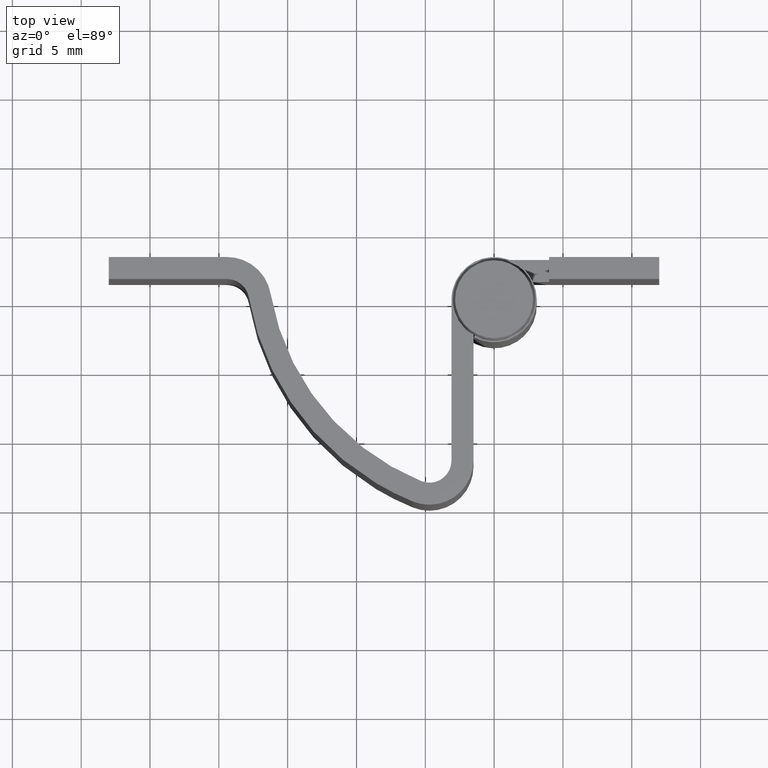
[diagram: clean part render]
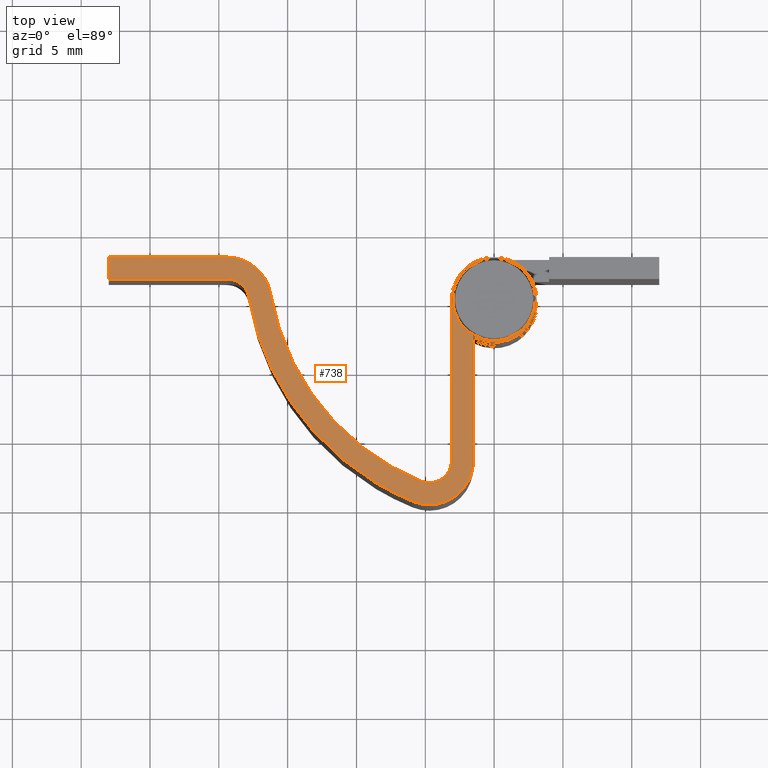
[diagram: same view with one face highlighted and labeled with its STEP entity id]
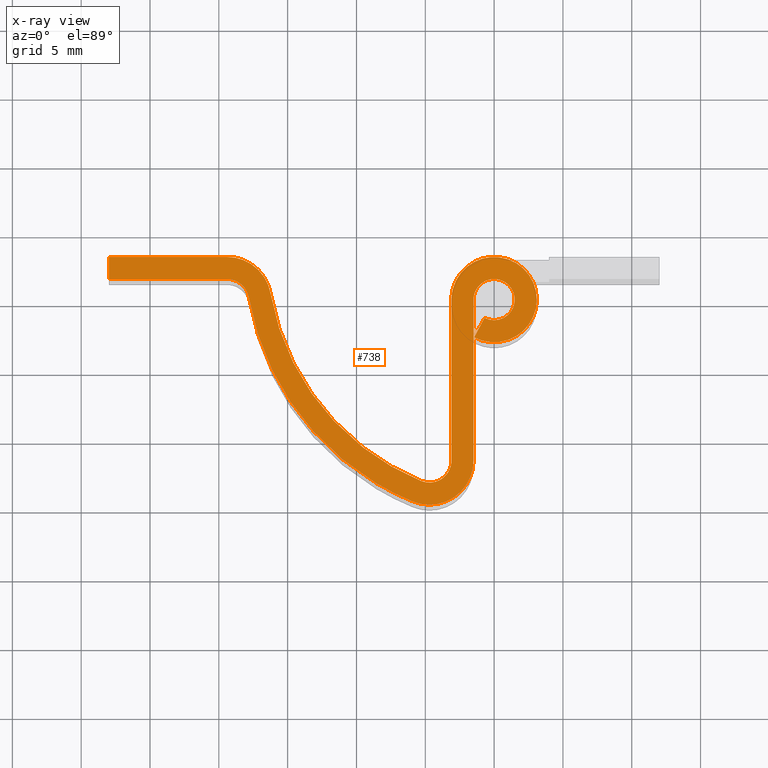
[diagram: x-ray of the same camera — body ghosted, the highlighted face saturated]
A machine part, top view. The second image highlights one B-rep face of the part: STEP entity #738.
The next image is the same camera in x-ray: the body ghosted, the highlighted face saturated — about 0% of this face is hidden behind the body in this view.
In plain terms, the highlighted face is a freeform B-spline surface patch.
Its self-contained STEP definition (entity closure, byte-faithful):
#553=CARTESIAN_POINT('',(4.652647075965634,3.999100123063185,28.000008000000001));
#554=CARTESIAN_POINT('',(-29.553407816543999,3.999100123063185,28.000008000000001));
#555=CARTESIAN_POINT('',(4.652647075965634,-15.799078204281271,28.000008000000001));
#556=CARTESIAN_POINT('',(-29.553407816543999,-15.799078204281271,28.000008000000001));
#557=B_SPLINE_SURFACE_WITH_KNOTS('',1,1,((#553,#555),(#554,#556)),.UNSPECIFIED.,.F.,.F.,.U.,(2,2),(2,2),(0.0,34.206054892509627),(0.0,19.798178327344459),.UNSPECIFIED.);
#558=CARTESIAN_POINT('',(-19.395591832448400,3.100001000000000,28.000008000000001));
#559=VERTEX_POINT('',#558);
#560=CARTESIAN_POINT('',(-28.0,3.099998000000000,28.000008000000001));
#561=VERTEX_POINT('',#560);
#562=CARTESIAN_POINT('',(-19.395591832448400,3.100001000000000,28.000008000000001));
#563=CARTESIAN_POINT('',(-28.0,3.099998000000000,28.000008000000001));
#564=QUASI_UNIFORM_CURVE('',1,(#562,#563),.UNSPECIFIED.,.F.,.U.);
#565=EDGE_CURVE('',#559,#561,#564,.T.);
#566=ORIENTED_EDGE('',*,*,#565,.T.);
#567=CARTESIAN_POINT('',(-28.0,1.500000000000000,28.000008000000001));
#568=VERTEX_POINT('',#567);
#569=CARTESIAN_POINT('',(-28.0,3.099998000000000,28.000008000000001));
#570=CARTESIAN_POINT('',(-28.0,1.500000000000000,28.000008000000001));
#571=QUASI_UNIFORM_CURVE('',1,(#569,#570),.UNSPECIFIED.,.F.,.U.);
#572=EDGE_CURVE('',#561,#568,#571,.T.);
#573=ORIENTED_EDGE('',*,*,#572,.T.);
#574=CARTESIAN_POINT('',(-19.395592000000001,1.500000000000000,28.000008000000001));
#575=VERTEX_POINT('',#574);
#576=CARTESIAN_POINT('',(-28.0,1.500000000000000,28.000008000000001));
#577=CARTESIAN_POINT('',(-19.395592000000001,1.500000000000000,28.000008000000001));
#578=QUASI_UNIFORM_CURVE('',1,(#576,#577),.UNSPECIFIED.,.F.,.U.);
#579=EDGE_CURVE('',#568,#575,#578,.T.);
#580=ORIENTED_EDGE('',*,*,#579,.T.);
#581=CARTESIAN_POINT('',(-17.818610504459251,0.170425412215495,28.000008000000001));
#582=VERTEX_POINT('',#581);
#583=CARTESIAN_POINT('',(-17.818610504459251,0.170425412215495,28.000008000000001));
#584=CARTESIAN_POINT('',(-18.046609182845387,1.500000500000006,28.000007999999998));
#585=CARTESIAN_POINT('',(-19.395592000000001,1.500000000000000,28.000008000000001));
#593=(BOUNDED_CURVE()B_SPLINE_CURVE(2,(#583,#584,#585),.UNSPECIFIED.,.F.,.U.)CURVE()GEOMETRIC_REPRESENTATION_ITEM()QUASI_UNIFORM_CURVE()RATIONAL_B_SPLINE_CURVE((1.0,0.764530986172135,1.0))REPRESENTATION_ITEM(''));
#594=EDGE_CURVE('',#582,#575,#593,.T.);
#595=ORIENTED_EDGE('',*,*,#594,.F.);
#596=CARTESIAN_POINT('',(-5.909638794925980,-14.662564264973099,28.000008000000001));
#597=VERTEX_POINT('',#596);
#598=CARTESIAN_POINT('',(-17.818610504459251,0.170425412215495,28.000008000000001));
#599=CARTESIAN_POINT('',(-15.980130291212712,-10.550689780048494,28.000008000000001));
#600=CARTESIAN_POINT('',(-5.909638794925980,-14.662564264973099,28.000008000000001));
#608=(BOUNDED_CURVE()B_SPLINE_CURVE(2,(#598,#599,#600),.UNSPECIFIED.,.F.,.U.)CURVE()GEOMETRIC_REPRESENTATION_ITEM()QUASI_UNIFORM_CURVE()RATIONAL_B_SPLINE_CURVE((1.0,0.874370865723024,1.0))REPRESENTATION_ITEM(''));
#609=EDGE_CURVE('',#582,#597,#608,.T.);
#610=ORIENTED_EDGE('',*,*,#609,.T.);
#611=CARTESIAN_POINT('',(-1.500000000000000,-11.704382779425741,28.000008000000001));
#612=VERTEX_POINT('',#611);
#613=CARTESIAN_POINT('',(-5.909638794925980,-14.662564264973099,28.000008000000001));
#614=CARTESIAN_POINT('',(-4.332224392940026,-15.306636620835187,28.000008000000001));
#615=CARTESIAN_POINT('',(-2.917278810644436,-14.357428302589231,28.000008000000001));
#616=CARTESIAN_POINT('',(-1.502333228348845,-13.408219984343264,28.000008000000001));
#617=CARTESIAN_POINT('',(-1.500000000000000,-11.704382779425741,28.000008000000001));
#625=(BOUNDED_CURVE()B_SPLINE_CURVE(2,(#613,#614,#615,#616,#617),.UNSPECIFIED.,.F.,.U.)B_SPLINE_CURVE_WITH_KNOTS((3,2,3),(0.0,0.500000000000000,1.0),.UNSPECIFIED.)CURVE()GEOMETRIC_REPRESENTATION_ITEM()RATIONAL_B_SPLINE_CURVE((1.0,0.882676661883725,1.0,0.882676661883725,1.0))REPRESENTATION_ITEM(''));
#626=EDGE_CURVE('',#597,#612,#625,.T.);
#627=ORIENTED_EDGE('',*,*,#626,.T.);
#628=CARTESIAN_POINT('',(-1.500000000000000,0.0,28.000008000000001));
#629=VERTEX_POINT('',#628);
#630=CARTESIAN_POINT('',(-1.500000000000000,-11.704382779425741,28.000008000000001));
#631=CARTESIAN_POINT('',(-1.500000000000000,0.0,28.000008000000001));
#632=QUASI_UNIFORM_CURVE('',1,(#630,#631),.UNSPECIFIED.,.F.,.U.);
#633=EDGE_CURVE('',#612,#629,#632,.T.);
#634=ORIENTED_EDGE('',*,*,#633,.T.);
#635=CARTESIAN_POINT('',(-0.701612903225806,-1.325797621821316,28.000008000000001));
#636=VERTEX_POINT('',#635);
#637=CARTESIAN_POINT('',(-0.701612903225806,-1.325797621821316,28.000008000000001));
#638=CARTESIAN_POINT('',(0.306035035134632,-1.859045520162958,28.000007999999998));
#639=CARTESIAN_POINT('',(1.089576583295441,-1.030933009042892,28.000008000000001));
#640=CARTESIAN_POINT('',(1.873118131456251,-0.202820497922826,28.000007999999998));
#641=CARTESIAN_POINT('',(1.284994037892532,0.773815431857394,28.000008000000001));
#642=CARTESIAN_POINT('',(0.696869944328814,1.750451361637614,28.000007999999998));
#643=CARTESIAN_POINT('',(-0.401565027835593,1.445249296287460,28.000008000000001));
#644=CARTESIAN_POINT('',(-1.500000000000000,1.140047230937307,28.000007999999998));
#645=CARTESIAN_POINT('',(-1.500000000000000,0.0,28.000008000000001));
#653=(BOUNDED_CURVE()B_SPLINE_CURVE(2,(#637,#638,#639,#640,#641,#642,#643,#644,#645),.UNSPECIFIED.,.F.,.U.)B_SPLINE_CURVE_WITH_KNOTS((3,2,2,2,3),(0.0,0.250000000000000,0.500000000000000,0.750000000000000,1.0),.UNSPECIFIED.)CURVE()GEOMETRIC_REPRESENTATION_ITEM()RATIONAL_B_SPLINE_CURVE((1.0,0.796150117301085,1.0,0.796150117301085,1.0,0.796150117301085,1.0,0.796150117301085,1.0))REPRESENTATION_ITEM(''));
#654=EDGE_CURVE('',#636,#629,#653,.T.);
#655=ORIENTED_EDGE('',*,*,#654,.F.);
#656=CARTESIAN_POINT('',(-1.450000000000000,-2.739981751764055,28.000008000000001));
#657=VERTEX_POINT('',#656);
#658=CARTESIAN_POINT('',(-0.701612903225806,-1.325797621821316,28.000008000000001));
#659=CARTESIAN_POINT('',(-1.450000000000000,-2.739981751764055,28.000008000000001));
#660=QUASI_UNIFORM_CURVE('',1,(#658,#659),.UNSPECIFIED.,.F.,.U.);
#661=EDGE_CURVE('',#636,#657,#660,.T.);
#662=ORIENTED_EDGE('',*,*,#661,.T.);
#663=CARTESIAN_POINT('',(-3.099999000000000,7.592557E-016,28.000008000000001));
#664=VERTEX_POINT('',#663);
#665=CARTESIAN_POINT('',(-1.450000000000000,-2.739981751764055,28.000008000000001));
#666=CARTESIAN_POINT('',(0.632471439010014,-3.842027610603230,28.000008000000005));
#667=CARTESIAN_POINT('',(2.251790208422830,-2.130595465393284,28.000008000000001));
#668=CARTESIAN_POINT('',(3.871108977835646,-0.419163320183339,28.000008000000005));
#669=CARTESIAN_POINT('',(2.655653254444240,1.599217601362452,28.000008000000001));
#670=CARTESIAN_POINT('',(1.440197531052833,3.617598522908243,28.000008000000005));
#671=CARTESIAN_POINT('',(-0.829900586888784,2.986847965622784,28.000008000000001));
#672=CARTESIAN_POINT('',(-3.099998704830402,2.356097408337325,28.000008000000005));
#673=CARTESIAN_POINT('',(-3.099999000000000,7.592557E-016,28.000008000000001));
#681=(BOUNDED_CURVE()B_SPLINE_CURVE(2,(#665,#666,#667,#668,#669,#670,#671,#672,#673),.UNSPECIFIED.,.F.,.U.)B_SPLINE_CURVE_WITH_KNOTS((3,2,2,2,3),(0.0,0.250000000000000,0.500000000000000,0.750000000000000,1.0),.UNSPECIFIED.)CURVE()GEOMETRIC_REPRESENTATION_ITEM()RATIONAL_B_SPLINE_CURVE((1.0,0.796150117301085,1.0,0.796150117301085,1.0,0.796150117301085,1.0,0.796150117301085,1.0))REPRESENTATION_ITEM(''));
#682=EDGE_CURVE('',#657,#664,#681,.T.);
#683=ORIENTED_EDGE('',*,*,#682,.T.);
#684=CARTESIAN_POINT('',(-3.099999000000000,-11.702530821338060,28.000008000000001));
#685=VERTEX_POINT('',#684);
#686=CARTESIAN_POINT('',(-3.099999000000000,7.592557E-016,28.000008000000001));
#687=CARTESIAN_POINT('',(-3.099999000000000,-11.702530821338060,28.000008000000001));
#688=QUASI_UNIFORM_CURVE('',1,(#686,#687),.UNSPECIFIED.,.F.,.U.);
#689=EDGE_CURVE('',#664,#685,#688,.T.);
#690=ORIENTED_EDGE('',*,*,#689,.T.);
#691=CARTESIAN_POINT('',(-5.304817838855500,-13.181281443699341,28.000008000000001));
#692=VERTEX_POINT('',#691);
#693=CARTESIAN_POINT('',(-5.304817838855501,-13.181281443699341,28.000008000000001));
#694=CARTESIAN_POINT('',(-4.516211358624149,-13.503276940858029,28.000007999999994));
#695=CARTESIAN_POINT('',(-3.808778594501450,-13.028808643604080,28.000008000000001));
#696=CARTESIAN_POINT('',(-3.101345830378750,-12.554340346350122,28.000007999999994));
#697=CARTESIAN_POINT('',(-3.099999000000001,-11.702530821338060,28.000008000000001));
#705=(BOUNDED_CURVE()B_SPLINE_CURVE(2,(#693,#694,#695,#696,#697),.UNSPECIFIED.,.F.,.U.)B_SPLINE_CURVE_WITH_KNOTS((3,2,3),(0.0,0.500000000000000,1.0),.UNSPECIFIED.)CURVE()GEOMETRIC_REPRESENTATION_ITEM()RATIONAL_B_SPLINE_CURVE((1.0,0.882701520932755,1.0,0.882701520932755,1.0))REPRESENTATION_ITEM(''));
#706=EDGE_CURVE('',#692,#685,#705,.T.);
#707=ORIENTED_EDGE('',*,*,#706,.F.);
#708=CARTESIAN_POINT('',(-16.241629718637899,0.440847743296611,28.000008000000001));
#709=VERTEX_POINT('',#708);
#710=CARTESIAN_POINT('',(-16.241629718637899,0.440847743296611,28.000008000000001));
#711=CARTESIAN_POINT('',(-14.553227869807007,-9.405071648866009,28.000008000000001));
#712=CARTESIAN_POINT('',(-5.304817838855500,-13.181281443699341,28.000008000000001));
#720=(BOUNDED_CURVE()B_SPLINE_CURVE(2,(#710,#711,#712),.UNSPECIFIED.,.F.,.U.)CURVE()GEOMETRIC_REPRESENTATION_ITEM()QUASI_UNIFORM_CURVE()RATIONAL_B_SPLINE_CURVE((1.0,0.874370895647251,1.0))REPRESENTATION_ITEM(''));
#721=EDGE_CURVE('',#709,#692,#720,.T.);
#722=ORIENTED_EDGE('',*,*,#721,.F.);
#723=CARTESIAN_POINT('',(-16.241629718637899,0.440847743296611,28.000008000000001));
#724=CARTESIAN_POINT('',(-16.697625207506029,3.100000769896291,28.000007999999998));
#725=CARTESIAN_POINT('',(-19.395591832448400,3.100001000000000,28.000008000000001));
#733=(BOUNDED_CURVE()B_SPLINE_CURVE(2,(#723,#724,#725),.UNSPECIFIED.,.F.,.U.)CURVE()GEOMETRIC_REPRESENTATION_ITEM()QUASI_UNIFORM_CURVE()RATIONAL_B_SPLINE_CURVE((1.0,0.764530808539082,1.0))REPRESENTATION_ITEM(''));
#734=EDGE_CURVE('',#709,#559,#733,.T.);
#735=ORIENTED_EDGE('',*,*,#734,.T.);
#736=EDGE_LOOP('',(#566,#573,#580,#595,#610,#627,#634,#655,#662,#683,#690,#707,#722,#735));
#737=FACE_OUTER_BOUND('',#736,.T.);
#738=ADVANCED_FACE('',(#737),#557,.T.);